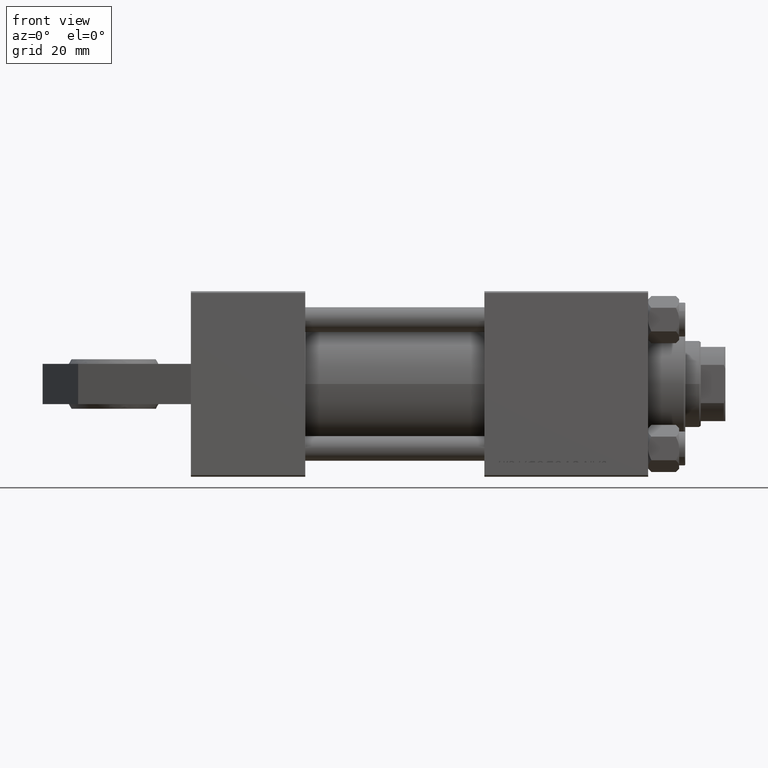
[diagram: clean part render]
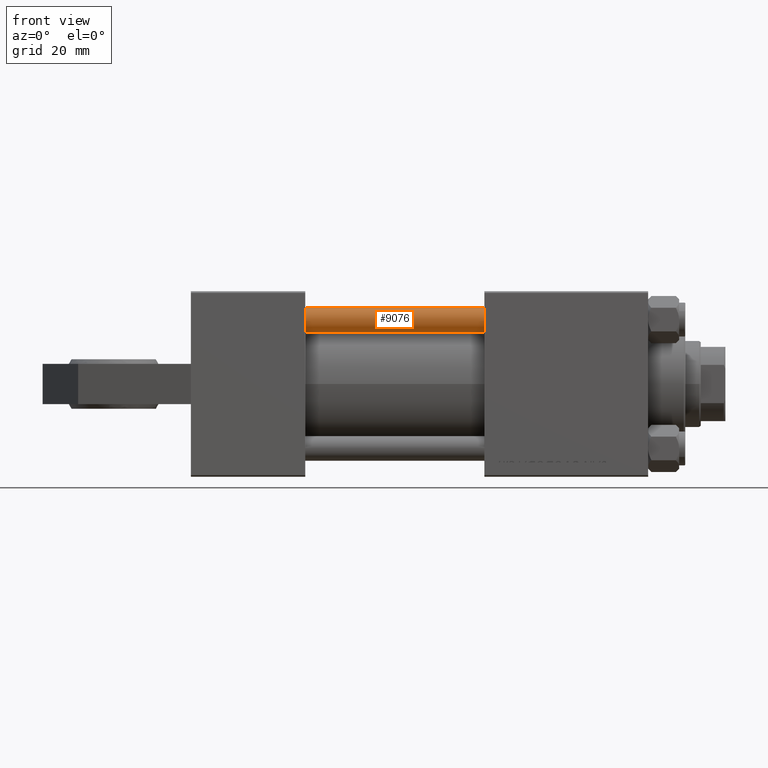
[diagram: same view with one face highlighted and labeled with its STEP entity id]
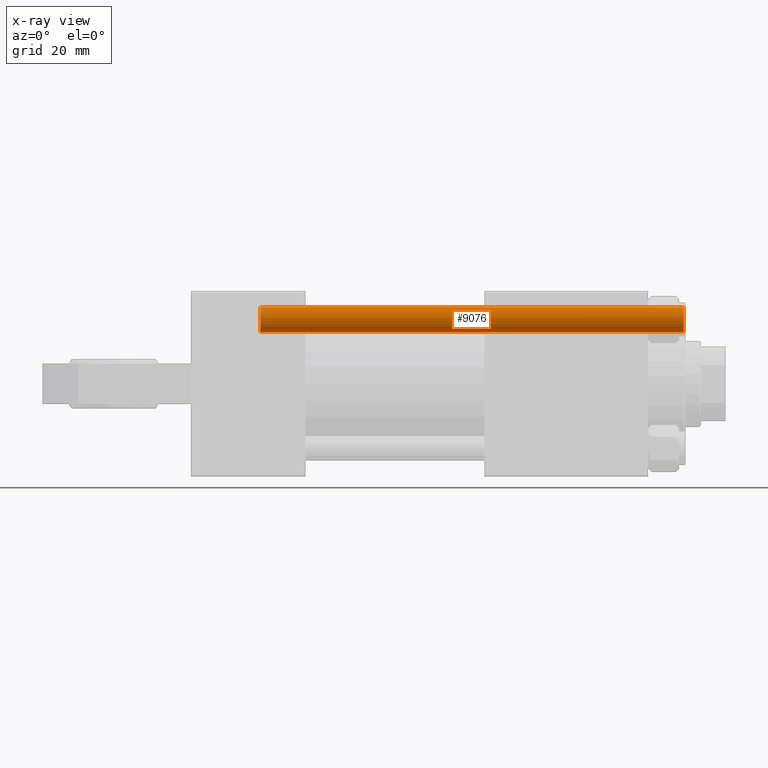
[diagram: x-ray of the same camera — body ghosted, the highlighted face saturated]
A machine part, front view. The second image highlights one B-rep face of the part: STEP entity #9076.
The next image is the same camera in x-ray: the body ghosted, the highlighted face saturated — about 0% of this face is hidden behind the body in this view.
In plain terms, the highlighted cylindrical surface (edge-blend (fillet) strip) has radius 4 mm, axis along (-1, 0, -0).
Its self-contained STEP definition (entity closure, byte-faithful):
#226 = CARTESIAN_POINT ( 'NONE',  ( 4.000000000000000000, 4.898587196589412829E-16, 0.5000000000000281997 ) ) ;
#2064 = VERTEX_POINT ( 'NONE', #226 ) ;
#5380 = CARTESIAN_POINT ( 'NONE',  ( 0.000000000000000000, 0.000000000000000000, 138.0000000000000000 ) ) ;
#5450 = DIRECTION ( 'NONE',  ( 1.000000000000000000, 0.000000000000000000, 0.000000000000000000 ) ) ;
#6312 = CARTESIAN_POINT ( 'NONE',  ( 0.000000000000000000, 0.000000000000000000, 137.5000000000000284 ) ) ;
#8239 = CARTESIAN_POINT ( 'NONE',  ( -4.000000000000000000, 0.000000000000000000, 138.0000000000000000 ) ) ;
#8871 = CIRCLE ( 'NONE', #43004, 4.000000000000000000 ) ;
#9076 = ADVANCED_FACE ( 'NONE', ( #33107 ), #24702, .T. ) ;
#9277 = CARTESIAN_POINT ( 'NONE',  ( 0.000000000000000000, 0.000000000000000000, 0.5000000000000281997 ) ) ;
#10579 = AXIS2_PLACEMENT_3D ( 'NONE', #5380, #36684, #14030 ) ;
#10891 = CIRCLE ( 'NONE', #17364, 4.000000000000000000 ) ;
#14013 = EDGE_LOOP ( 'NONE', ( #44463, #42677, #37957, #20596 ) ) ;
#14030 = DIRECTION ( 'NONE',  ( -1.000000000000000000, 0.000000000000000000, 0.000000000000000000 ) ) ;
#15125 = LINE ( 'NONE', #8239, #18853 ) ;
#15601 = EDGE_CURVE ( 'NONE', #2064, #28505, #10891, .T. ) ;
#17364 = AXIS2_PLACEMENT_3D ( 'NONE', #9277, #40325, #5450 ) ;
#17430 = CARTESIAN_POINT ( 'NONE',  ( 4.000000000000000000, 4.898587196589412829E-16, 138.0000000000000000 ) ) ;
#18853 = VECTOR ( 'NONE', #35459, 1000.000000000000000 ) ;
#19339 = EDGE_CURVE ( 'NONE', #28121, #41296, #8871, .T. ) ;
#20596 = ORIENTED_EDGE ( 'NONE', *, *, #46494, .F. ) ;
#22116 = VECTOR ( 'NONE', #44410, 1000.000000000000000 ) ;
#24702 = CYLINDRICAL_SURFACE ( 'NONE', #10579, 4.000000000000000000 ) ;
#26286 = CARTESIAN_POINT ( 'NONE',  ( -4.000000000000000000, 0.000000000000000000, 137.5000000000000284 ) ) ;
#28121 = VERTEX_POINT ( 'NONE', #26286 ) ;
#28505 = VERTEX_POINT ( 'NONE', #31292 ) ;
#30854 = EDGE_CURVE ( 'NONE', #41296, #2064, #48226, .T. ) ;
#31292 = CARTESIAN_POINT ( 'NONE',  ( -4.000000000000000000, 0.000000000000000000, 0.5000000000000281997 ) ) ;
#33107 = FACE_OUTER_BOUND ( 'NONE', #14013, .T. ) ;
#33535 = DIRECTION ( 'NONE',  ( 1.000000000000000000, 0.000000000000000000, 0.000000000000000000 ) ) ;
#35459 = DIRECTION ( 'NONE',  ( -0.000000000000000000, -0.000000000000000000, -1.000000000000000000 ) ) ;
#36684 = DIRECTION ( 'NONE',  ( -0.000000000000000000, -0.000000000000000000, -1.000000000000000000 ) ) ;
#37957 = ORIENTED_EDGE ( 'NONE', *, *, #15601, .T. ) ;
#40325 = DIRECTION ( 'NONE',  ( -0.000000000000000000, -0.000000000000000000, 1.000000000000000000 ) ) ;
#41296 = VERTEX_POINT ( 'NONE', #46204 ) ;
#42677 = ORIENTED_EDGE ( 'NONE', *, *, #30854, .T. ) ;
#43004 = AXIS2_PLACEMENT_3D ( 'NONE', #6312, #48034, #33535 ) ;
#44410 = DIRECTION ( 'NONE',  ( -0.000000000000000000, -0.000000000000000000, -1.000000000000000000 ) ) ;
#44463 = ORIENTED_EDGE ( 'NONE', *, *, #19339, .T. ) ;
#46204 = CARTESIAN_POINT ( 'NONE',  ( 4.000000000000000000, 4.898587196589412829E-16, 137.5000000000000284 ) ) ;
#46494 = EDGE_CURVE ( 'NONE', #28121, #28505, #15125, .T. ) ;
#48034 = DIRECTION ( 'NONE',  ( 0.000000000000000000, 0.000000000000000000, -1.000000000000000000 ) ) ;
#48226 = LINE ( 'NONE', #17430, #22116 ) ;